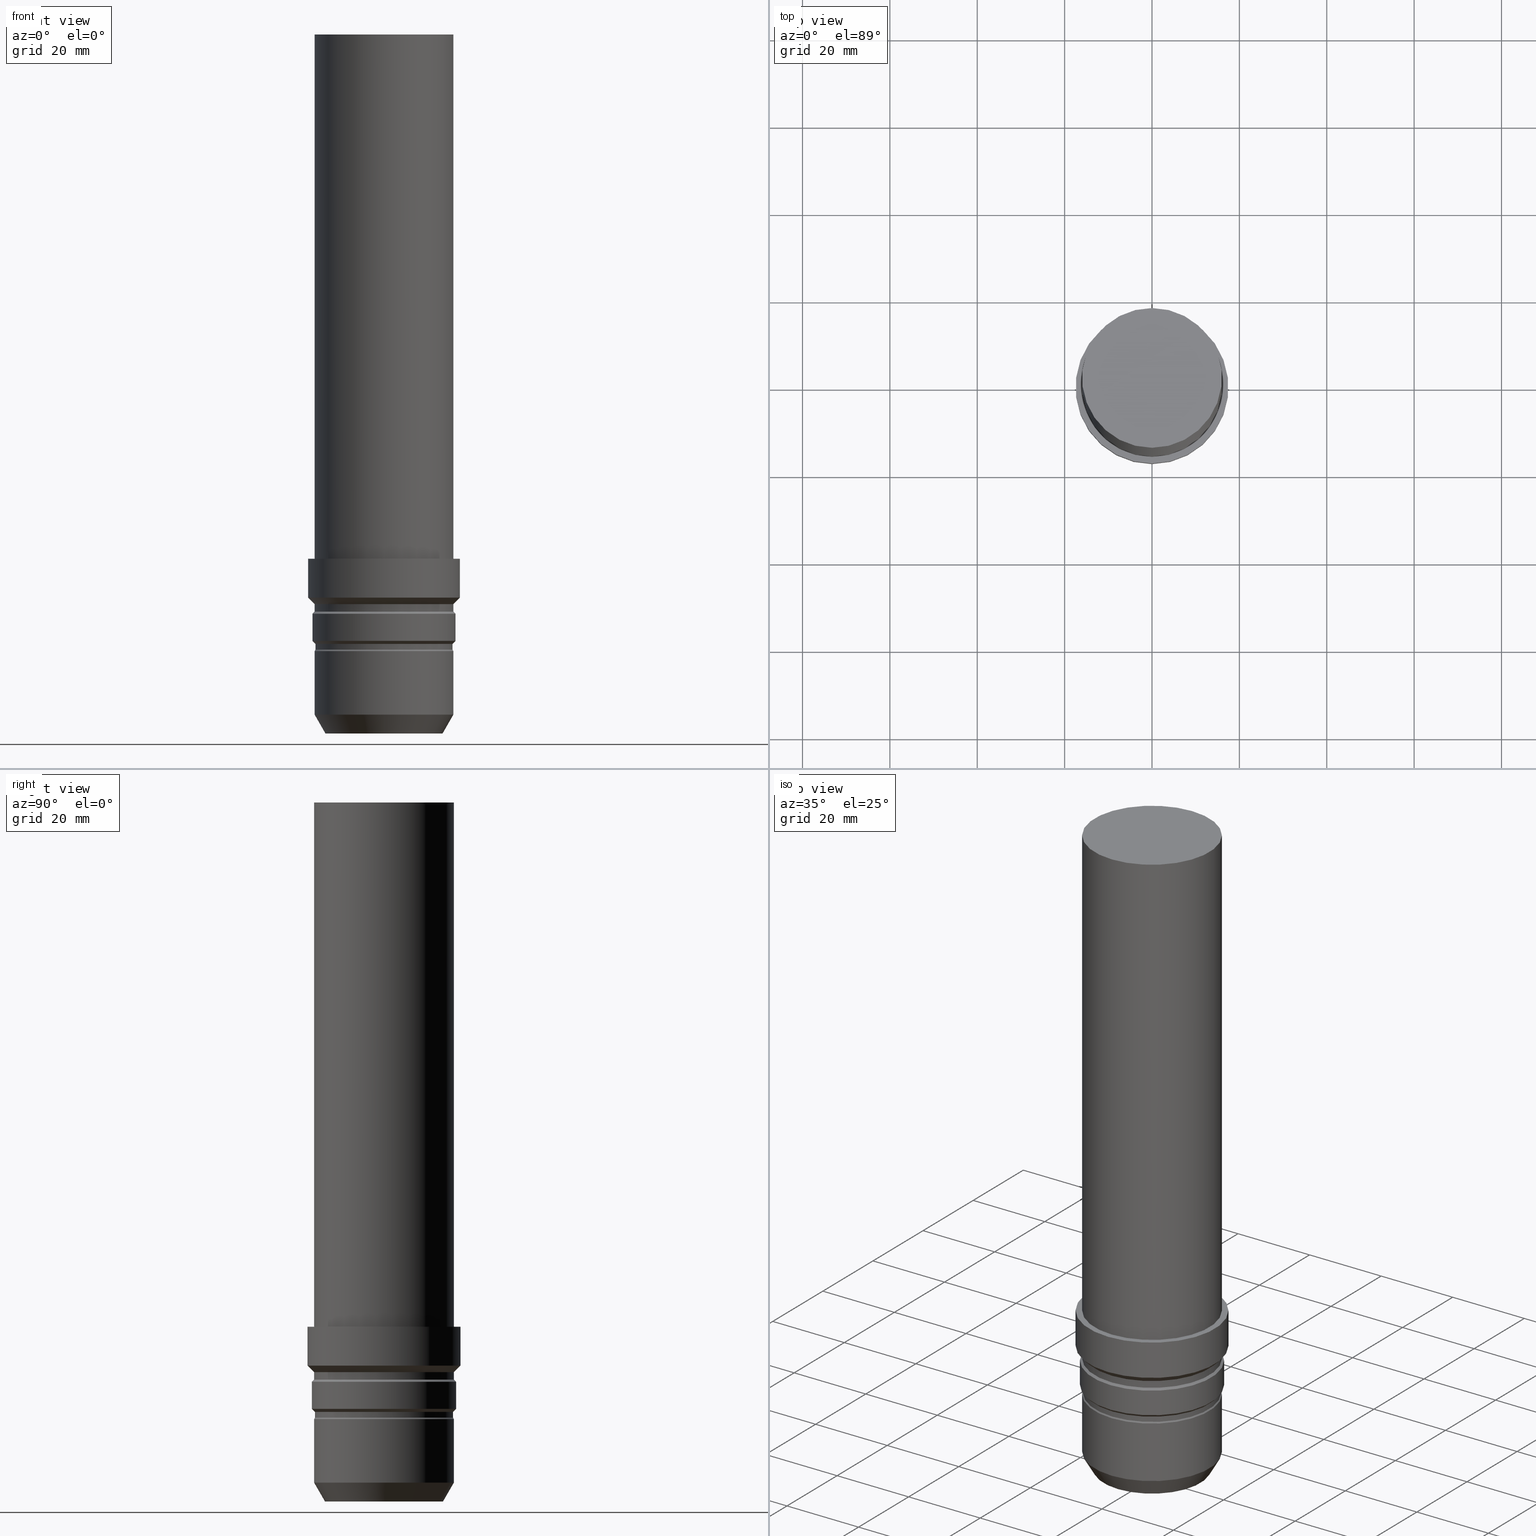
[diagram: canonical four-view strip — front | top / right | iso, engineering-drawing reading convention]
A machine part, canonical four-view strip (front | top / right | iso — engineering-drawing reading convention). The complete STEP part file that produces these views, byte-faithful:
ISO-10303-21;
HEADER;
FILE_DESCRIPTION((''),'1');
FILE_NAME('U:/Translate/00_BIG-HP\X2\FF71FF6FFF8CFF9F\X0\2013/\X2\30C030A630F330ED30FC30C930C730FC30BF\X0\/Vol9\X2\4EE5964D63B28F094E885B9A\X0\/STEP_\X2\FF82FF70FF98FF9DFF78FF9E7DE8\X0\Vol9-1\X2\4EE5964D63B28F094E885B9A\X0\/ST32-HMC12J-160.stp','2014-12-22T03:54:48',(''),(''),'Spatial Interop R21 SP3','Kubotek KeyCreator 2011 V10.0.2 (22737)',' ');
FILE_SCHEMA(('automotive_design'));
ENDSEC;
DATA;
#1=MECHANICAL_DESIGN_GEOMETRIC_PRESENTATION_REPRESENTATION(' ',(#10,#11,#12,#13,#14,#15,#16,#17,#18,#19,#20,#21,#22,#23,#24,#25,#26,#27,#28,#29,#30,#31,#32,#33,#34,#35,#36,#37),#6);
#2=PRODUCT_DEFINITION_CONTEXT('',#38,'design');
#3=APPLICATION_PROTOCOL_DEFINITION('INTERNATIONAL STANDARD','automotive_design',1994,#38);
#4=PRODUCT_CATEGORY_RELATIONSHIP('NONE','NONE',#39,#40);
#5=SHAPE_DEFINITION_REPRESENTATION(#41,#42);
#6= (GEOMETRIC_REPRESENTATION_CONTEXT(3)GLOBAL_UNCERTAINTY_ASSIGNED_CONTEXT((#45))GLOBAL_UNIT_ASSIGNED_CONTEXT((#47,#48,#49))REPRESENTATION_CONTEXT('NONE','WORKSPACE'));
#10=STYLED_ITEM('',(#51),#52);
#11=STYLED_ITEM('',(#53,#54),#55);
#12=STYLED_ITEM('',(#56,#57),#58);
#13=STYLED_ITEM('',(#59,#60),#61);
#14=STYLED_ITEM('',(#62,#63),#64);
#15=STYLED_ITEM('',(#65),#66);
#16=STYLED_ITEM('',(#67),#68);
#17=STYLED_ITEM('',(#69),#70);
#18=STYLED_ITEM('',(#71,#72),#73);
#19=STYLED_ITEM('',(#74),#75);
#20=STYLED_ITEM('',(#76,#77),#78);
#21=STYLED_ITEM('',(#79,#80),#81);
#22=STYLED_ITEM('',(#82,#83),#84);
#23=STYLED_ITEM('',(#85,#86),#87);
#24=STYLED_ITEM('',(#88),#89);
#25=STYLED_ITEM('',(#90,#91),#92);
#26=STYLED_ITEM('',(#93,#94),#95);
#27=STYLED_ITEM('',(#96,#97),#98);
#28=STYLED_ITEM('',(#99),#100);
#29=STYLED_ITEM('',(#101),#102);
#30=STYLED_ITEM('',(#103,#104),#105);
#31=STYLED_ITEM('',(#106),#107);
#32=STYLED_ITEM('',(#108),#109);
#33=STYLED_ITEM('',(#110),#111);
#34=STYLED_ITEM('',(#112),#113);
#35=STYLED_ITEM('',(#114,#115),#116);
#36=STYLED_ITEM('',(#117,#118),#119);
#37=STYLED_ITEM('',(#120),#121);
#38=APPLICATION_CONTEXT(' ');
#39=PRODUCT_CATEGORY('part','NONE');
#40=PRODUCT_RELATED_PRODUCT_CATEGORY('detail',' ',(#122));
#41=PRODUCT_DEFINITION_SHAPE('NONE','NONE',#123);
#42=ADVANCED_BREP_SHAPE_REPRESENTATION('Unnamed[1]',(#81,#124),#6);
#45=UNCERTAINTY_MEASURE_WITH_UNIT(LENGTH_MEASURE(1.0E-006),#47,'','');
#47= (CONVERSION_BASED_UNIT('MILLIMETRE',#127)LENGTH_UNIT()NAMED_UNIT(#130));
#48= (NAMED_UNIT(#132)PLANE_ANGLE_UNIT()SI_UNIT($,.RADIAN.));
#49= (NAMED_UNIT(#132)SOLID_ANGLE_UNIT()SI_UNIT($,.STERADIAN.));
#51=PRESENTATION_STYLE_ASSIGNMENT((#138));
#52=EDGE_CURVE('Unnamed[1]',#139,#139,#140,.T.);
#53=PRESENTATION_STYLE_ASSIGNMENT((#141));
#54=PRESENTATION_STYLE_ASSIGNMENT((#142));
#55=ADVANCED_FACE('Unnamed[1]',(#143,#144),#145,.T.);
#56=PRESENTATION_STYLE_ASSIGNMENT((#146));
#57=PRESENTATION_STYLE_ASSIGNMENT((#147));
#58=ADVANCED_FACE('Unnamed[1]',(#148,#149),#150,.T.);
#59=PRESENTATION_STYLE_ASSIGNMENT((#151));
#60=PRESENTATION_STYLE_ASSIGNMENT((#152));
#61=ADVANCED_FACE('Unnamed[1]',(#153,#154),#155,.T.);
#62=PRESENTATION_STYLE_ASSIGNMENT((#156));
#63=PRESENTATION_STYLE_ASSIGNMENT((#157));
#64=ADVANCED_FACE('Unnamed[1]',(#158,#159),#160,.T.);
#65=PRESENTATION_STYLE_ASSIGNMENT((#161));
#66=EDGE_CURVE('Unnamed[1]',#162,#162,#163,.T.);
#67=PRESENTATION_STYLE_ASSIGNMENT((#164));
#68=EDGE_CURVE('Unnamed[1]',#165,#165,#166,.T.);
#69=PRESENTATION_STYLE_ASSIGNMENT((#167));
#70=EDGE_CURVE('Unnamed[1]',#168,#168,#169,.T.);
#71=PRESENTATION_STYLE_ASSIGNMENT((#170));
#72=PRESENTATION_STYLE_ASSIGNMENT((#171));
#73=ADVANCED_FACE('Unnamed[1]',(#172),#173,.T.);
#74=PRESENTATION_STYLE_ASSIGNMENT((#174));
#75=EDGE_CURVE('Unnamed[1]',#175,#175,#176,.T.);
#76=PRESENTATION_STYLE_ASSIGNMENT((#177));
#77=PRESENTATION_STYLE_ASSIGNMENT((#178));
#78=ADVANCED_FACE('Unnamed[1]',(#179,#180),#181,.T.);
#79=PRESENTATION_STYLE_ASSIGNMENT((#182));
#80=PRESENTATION_STYLE_ASSIGNMENT((#183));
#81=MANIFOLD_SOLID_BREP('Unnamed[1]',#184);
#82=PRESENTATION_STYLE_ASSIGNMENT((#185));
#83=PRESENTATION_STYLE_ASSIGNMENT((#186));
#84=ADVANCED_FACE('Unnamed[1]',(#187,#188),#189,.T.);
#85=PRESENTATION_STYLE_ASSIGNMENT((#190));
#86=PRESENTATION_STYLE_ASSIGNMENT((#191));
#87=ADVANCED_FACE('Unnamed[1]',(#192,#193),#194,.T.);
#88=PRESENTATION_STYLE_ASSIGNMENT((#195));
#89=EDGE_CURVE('Unnamed[1]',#196,#196,#197,.T.);
#90=PRESENTATION_STYLE_ASSIGNMENT((#198));
#91=PRESENTATION_STYLE_ASSIGNMENT((#199));
#92=ADVANCED_FACE('Unnamed[1]',(#200,#201),#202,.T.);
#93=PRESENTATION_STYLE_ASSIGNMENT((#203));
#94=PRESENTATION_STYLE_ASSIGNMENT((#204));
#95=ADVANCED_FACE('Unnamed[1]',(#205,#206),#207,.T.);
#96=PRESENTATION_STYLE_ASSIGNMENT((#208));
#97=PRESENTATION_STYLE_ASSIGNMENT((#209));
#98=ADVANCED_FACE('Unnamed[1]',(#210,#211),#212,.T.);
#99=PRESENTATION_STYLE_ASSIGNMENT((#213));
#100=EDGE_CURVE('Unnamed[1]',#214,#214,#215,.T.);
#101=PRESENTATION_STYLE_ASSIGNMENT((#216));
#102=EDGE_CURVE('Unnamed[1]',#217,#217,#218,.T.);
#103=PRESENTATION_STYLE_ASSIGNMENT((#219));
#104=PRESENTATION_STYLE_ASSIGNMENT((#220));
#105=ADVANCED_FACE('Unnamed[1]',(#221,#222),#223,.T.);
#106=PRESENTATION_STYLE_ASSIGNMENT((#224));
#107=EDGE_CURVE('Unnamed[1]',#225,#225,#226,.T.);
#108=PRESENTATION_STYLE_ASSIGNMENT((#227));
#109=EDGE_CURVE('Unnamed[1]',#228,#228,#229,.T.);
#110=PRESENTATION_STYLE_ASSIGNMENT((#230));
#111=EDGE_CURVE('Unnamed[1]',#231,#231,#232,.T.);
#112=PRESENTATION_STYLE_ASSIGNMENT((#233));
#113=EDGE_CURVE('Unnamed[1]',#234,#234,#235,.T.);
#114=PRESENTATION_STYLE_ASSIGNMENT((#236));
#115=PRESENTATION_STYLE_ASSIGNMENT((#237));
#116=ADVANCED_FACE('Unnamed[1]',(#238),#239,.T.);
#117=PRESENTATION_STYLE_ASSIGNMENT((#240));
#118=PRESENTATION_STYLE_ASSIGNMENT((#241));
#119=ADVANCED_FACE('Unnamed[1]',(#242,#243),#244,.T.);
#120=PRESENTATION_STYLE_ASSIGNMENT((#245));
#121=EDGE_CURVE('Unnamed[1]',#246,#246,#247,.T.);
#122=PRODUCT('Unnamed[1]','Unnamed[1]','PART-Unnamed[1]-DESC',(#248));
#123=PRODUCT_DEFINITION('NONE','NONE',#249,#2);
#124=AXIS2_PLACEMENT_3D('',#250,#251,#252);
#127=LENGTH_MEASURE_WITH_UNIT(LENGTH_MEASURE(1.0),#253);
#130=DIMENSIONAL_EXPONENTS(1.0,0.0,0.0,0.0,0.0,0.0,0.0);
#132=DIMENSIONAL_EXPONENTS(0.0,0.0,0.0,0.0,0.0,0.0,0.0);
#138=CURVE_STYLE('',#254,POSITIVE_LENGTH_MEASURE(1000.0),#255);
#139=VERTEX_POINT('',#256);
#140=CIRCLE('',#257,15.8000000000001);
#141=SURFACE_STYLE_USAGE(.BOTH.,#258);
#142=CURVE_STYLE('',#259,POSITIVE_LENGTH_MEASURE(1000.0),#260);
#143=FACE_BOUND('',#261,.T.);
#144=FACE_BOUND('',#262,.T.);
#145=CYLINDRICAL_SURFACE('',#263,15.8000000000001);
#146=SURFACE_STYLE_USAGE(.BOTH.,#264);
#147=CURVE_STYLE('',#265,POSITIVE_LENGTH_MEASURE(1000.0),#266);
#148=FACE_BOUND('',#267,.T.);
#149=FACE_BOUND('',#268,.T.);
#150=CONICAL_SURFACE('',#269,16.1500000000001,0.785398163397412);
#151=SURFACE_STYLE_USAGE(.BOTH.,#270);
#152=CURVE_STYLE('',#271,POSITIVE_LENGTH_MEASURE(1000.0),#272);
#153=FACE_BOUND('',#273,.T.);
#154=FACE_BOUND('',#274,.T.);
#155=CYLINDRICAL_SURFACE('',#275,16.0000000000001);
#156=SURFACE_STYLE_USAGE(.BOTH.,#276);
#157=CURVE_STYLE('',#277,POSITIVE_LENGTH_MEASURE(1000.0),#278);
#158=FACE_BOUND('',#279,.T.);
#159=FACE_BOUND('',#280,.T.);
#160=CONICAL_SURFACE('',#281,14.75,0.523598775598304);
#161=CURVE_STYLE('',#282,POSITIVE_LENGTH_MEASURE(1000.0),#283);
#162=VERTEX_POINT('',#284);
#163=CIRCLE('',#285,16.0);
#164=CURVE_STYLE('',#286,POSITIVE_LENGTH_MEASURE(1000.0),#287);
#165=VERTEX_POINT('',#288);
#166=CIRCLE('',#289,16.0);
#167=CURVE_STYLE('',#290,POSITIVE_LENGTH_MEASURE(1000.0),#291);
#168=VERTEX_POINT('',#292);
#169=CIRCLE('',#293,17.5000000000002);
#170=SURFACE_STYLE_USAGE(.BOTH.,#294);
#171=CURVE_STYLE('',#295,POSITIVE_LENGTH_MEASURE(1000.0),#296);
#172=FACE_OUTER_BOUND('',#297,.T.);
#173=PLANE('',#298);
#174=CURVE_STYLE('',#299,POSITIVE_LENGTH_MEASURE(1000.0),#300);
#175=VERTEX_POINT('',#301);
#176=CIRCLE('',#302,16.0);
#177=SURFACE_STYLE_USAGE(.BOTH.,#303);
#178=CURVE_STYLE('',#304,POSITIVE_LENGTH_MEASURE(1000.0),#305);
#179=FACE_BOUND('',#306,.T.);
#180=FACE_BOUND('',#307,.T.);
#181=CONICAL_SURFACE('',#308,16.7500000000002,0.785398163397434);
#182=SURFACE_STYLE_USAGE(.BOTH.,#309);
#183=CURVE_STYLE('',#310,POSITIVE_LENGTH_MEASURE(1000.0),#311);
#184=CLOSED_SHELL('',(#73,#61,#84,#92,#78,#98,#119,#105,#58,#55,#87,#95,#64,#116));
#185=SURFACE_STYLE_USAGE(.BOTH.,#312);
#186=CURVE_STYLE('',#313,POSITIVE_LENGTH_MEASURE(1000.0),#314);
#187=FACE_OUTER_BOUND('',#315,.T.);
#188=FACE_BOUND('',#316,.T.);
#189=PLANE('',#317);
#190=SURFACE_STYLE_USAGE(.BOTH.,#318);
#191=CURVE_STYLE('',#319,POSITIVE_LENGTH_MEASURE(1000.0),#320);
#192=FACE_BOUND('',#321,.T.);
#193=FACE_BOUND('',#322,.T.);
#194=CONICAL_SURFACE('',#323,15.9,0.523598775598126);
#195=CURVE_STYLE('',#324,POSITIVE_LENGTH_MEASURE(1000.0),#325);
#196=VERTEX_POINT('',#326);
#197=CIRCLE('',#327,16.5000000000002);
#198=SURFACE_STYLE_USAGE(.BOTH.,#328);
#199=CURVE_STYLE('',#329,POSITIVE_LENGTH_MEASURE(1000.0),#330);
#200=FACE_BOUND('',#331,.T.);
#201=FACE_BOUND('',#332,.T.);
#202=CYLINDRICAL_SURFACE('',#333,17.5000000000002);
#203=SURFACE_STYLE_USAGE(.BOTH.,#334);
#204=CURVE_STYLE('',#335,POSITIVE_LENGTH_MEASURE(1000.0),#336);
#205=FACE_BOUND('',#337,.T.);
#206=FACE_BOUND('',#338,.T.);
#207=CYLINDRICAL_SURFACE('',#339,16.0);
#208=SURFACE_STYLE_USAGE(.BOTH.,#340);
#209=CURVE_STYLE('',#341,POSITIVE_LENGTH_MEASURE(1000.0),#342);
#210=FACE_BOUND('',#343,.T.);
#211=FACE_BOUND('',#344,.T.);
#212=CYLINDRICAL_SURFACE('',#345,16.0000000000002);
#213=CURVE_STYLE('',#346,POSITIVE_LENGTH_MEASURE(1000.0),#347);
#214=VERTEX_POINT('',#348);
#215=CIRCLE('',#349,16.0000000000002);
#216=CURVE_STYLE('',#350,POSITIVE_LENGTH_MEASURE(1000.0),#351);
#217=VERTEX_POINT('',#352);
#218=CIRCLE('',#353,16.5000000000001);
#219=SURFACE_STYLE_USAGE(.BOTH.,#354);
#220=CURVE_STYLE('',#355,POSITIVE_LENGTH_MEASURE(1000.0),#356);
#221=FACE_BOUND('',#357,.T.);
#222=FACE_BOUND('',#358,.T.);
#223=CYLINDRICAL_SURFACE('',#359,16.5000000000001);
#224=CURVE_STYLE('',#360,POSITIVE_LENGTH_MEASURE(1000.0),#361);
#225=VERTEX_POINT('',#362);
#226=CIRCLE('',#363,15.8000000000001);
#227=CURVE_STYLE('',#364,POSITIVE_LENGTH_MEASURE(1000.0),#365);
#228=VERTEX_POINT('',#366);
#229=CIRCLE('',#367,16.0000000000002);
#230=CURVE_STYLE('',#368,POSITIVE_LENGTH_MEASURE(1000.0),#369);
#231=VERTEX_POINT('',#370);
#232=CIRCLE('',#371,17.5000000000002);
#233=CURVE_STYLE('',#372,POSITIVE_LENGTH_MEASURE(1000.0),#373);
#234=VERTEX_POINT('',#374);
#235=CIRCLE('',#375,13.5000000000001);
#236=SURFACE_STYLE_USAGE(.BOTH.,#376);
#237=CURVE_STYLE('',#377,POSITIVE_LENGTH_MEASURE(1000.0),#378);
#238=FACE_OUTER_BOUND('',#379,.T.);
#239=PLANE('',#380);
#240=SURFACE_STYLE_USAGE(.BOTH.,#381);
#241=CURVE_STYLE('',#382,POSITIVE_LENGTH_MEASURE(1000.0),#383);
#242=FACE_BOUND('',#384,.T.);
#243=FACE_BOUND('',#385,.T.);
#244=CONICAL_SURFACE('',#386,16.2500000000002,0.785398163397583);
#245=CURVE_STYLE('',#387,POSITIVE_LENGTH_MEASURE(1000.0),#388);
#246=VERTEX_POINT('',#389);
#247=CIRCLE('',#390,16.0000000000002);
#248=PRODUCT_CONTEXT('',#38,'mechanical');
#249=PRODUCT_DEFINITION_FORMATION_WITH_SPECIFIED_SOURCE(' ','NONE',#122,.NOT_KNOWN.);
#250=CARTESIAN_POINT('',(0.0,0.0,0.0));
#251=DIRECTION('',(0.0,0.0,1.0));
#252=DIRECTION('',(1.0,0.0,0.0));
#253= (NAMED_UNIT(#130)LENGTH_UNIT()SI_UNIT(.MILLI.,.METRE.));
#254=DRAUGHTING_PRE_DEFINED_CURVE_FONT('continuous');
#255=COLOUR_RGB('',0.0,1.0,0.0);
#256=CARTESIAN_POINT('',(-1.25526296912605E-015,15.8000000000002,20.5000000000003));
#257=AXIS2_PLACEMENT_3D('',#392,#393,#394);
#258=SURFACE_SIDE_STYLE('',(#395));
#259=DRAUGHTING_PRE_DEFINED_CURVE_FONT('continuous');
#260=COLOUR_RGB('',0.0,1.0,0.0);
#261=EDGE_LOOP('',(#396));
#262=EDGE_LOOP('',(#397));
#263=AXIS2_PLACEMENT_3D('',#398,#399,#400);
#264=SURFACE_SIDE_STYLE('',(#401));
#265=DRAUGHTING_PRE_DEFINED_CURVE_FONT('continuous');
#266=COLOUR_RGB('',0.0,1.0,0.0);
#267=EDGE_LOOP('',(#402));
#268=EDGE_LOOP('',(#403));
#269=AXIS2_PLACEMENT_3D('',#404,#405,#406);
#270=SURFACE_SIDE_STYLE('',(#407));
#271=DRAUGHTING_PRE_DEFINED_CURVE_FONT('continuous');
#272=COLOUR_RGB('',0.0,1.0,0.0);
#273=EDGE_LOOP('',(#408));
#274=EDGE_LOOP('',(#409));
#275=AXIS2_PLACEMENT_3D('',#410,#411,#412);
#276=SURFACE_SIDE_STYLE('',(#413));
#277=DRAUGHTING_PRE_DEFINED_CURVE_FONT('continuous');
#278=COLOUR_RGB('',0.0,1.0,0.0);
#279=EDGE_LOOP('',(#414));
#280=EDGE_LOOP('',(#415));
#281=AXIS2_PLACEMENT_3D('',#416,#417,#418);
#282=DRAUGHTING_PRE_DEFINED_CURVE_FONT('continuous');
#283=COLOUR_RGB('',0.0,1.0,0.0);
#284=CARTESIAN_POINT('',(-9.7971743931788E-015,16.0000000000002,160.0));
#285=AXIS2_PLACEMENT_3D('',#419,#420,#421);
#286=DRAUGHTING_PRE_DEFINED_CURVE_FONT('continuous');
#287=COLOUR_RGB('',0.0,1.0,0.0);
#288=CARTESIAN_POINT('',(-1.15444942240699E-015,16.0,18.8535898384866));
#289=AXIS2_PLACEMENT_3D('',#422,#423,#424);
#290=DRAUGHTING_PRE_DEFINED_CURVE_FONT('continuous');
#291=COLOUR_RGB('',0.0,1.0,0.0);
#292=CARTESIAN_POINT('',(-1.90432577267407E-015,17.5000000000002,31.099999999999));
#293=AXIS2_PLACEMENT_3D('',#425,#426,#427);
#294=SURFACE_SIDE_STYLE('',(#428));
#295=DRAUGHTING_PRE_DEFINED_CURVE_FONT('continuous');
#296=COLOUR_RGB('',0.0,1.0,0.0);
#297=EDGE_LOOP('',(#429));
#298=AXIS2_PLACEMENT_3D('',#430,#431,#432);
#299=DRAUGHTING_PRE_DEFINED_CURVE_FONT('continuous');
#300=COLOUR_RGB('',0.0,1.0,0.0);
#301=CARTESIAN_POINT('',(-2.65143809681212E-016,16.0,4.33012701892196));
#302=AXIS2_PLACEMENT_3D('',#433,#434,#435);
#303=SURFACE_SIDE_STYLE('',(#436));
#304=DRAUGHTING_PRE_DEFINED_CURVE_FONT('continuous');
#305=COLOUR_RGB('',0.0,1.0,0.0);
#306=EDGE_LOOP('',(#437));
#307=EDGE_LOOP('',(#438));
#308=AXIS2_PLACEMENT_3D('',#439,#440,#441);
#309=SURFACE_SIDE_STYLE('',(#442));
#310=DRAUGHTING_PRE_DEFINED_CURVE_FONT('continuous');
#311=COLOUR_RGB('',0.0,1.0,0.0);
#312=SURFACE_SIDE_STYLE('',(#443));
#313=DRAUGHTING_PRE_DEFINED_CURVE_FONT('continuous');
#314=COLOUR_RGB('',0.0,1.0,0.0);
#315=EDGE_LOOP('',(#444));
#316=EDGE_LOOP('',(#445));
#317=AXIS2_PLACEMENT_3D('',#446,#447,#448);
#318=SURFACE_SIDE_STYLE('',(#449));
#319=DRAUGHTING_PRE_DEFINED_CURVE_FONT('continuous');
#320=COLOUR_RGB('',0.0,1.0,0.0);
#321=EDGE_LOOP('',(#450));
#322=EDGE_LOOP('',(#451));
#323=AXIS2_PLACEMENT_3D('',#452,#453,#454);
#324=DRAUGHTING_PRE_DEFINED_CURVE_FONT('continuous');
#325=COLOUR_RGB('',0.0,1.0,0.0);
#326=CARTESIAN_POINT('',(-1.67776611483181E-015,16.5000000000002,27.399999999999));
#327=AXIS2_PLACEMENT_3D('',#455,#456,#457);
#328=SURFACE_SIDE_STYLE('',(#458));
#329=DRAUGHTING_PRE_DEFINED_CURVE_FONT('continuous');
#330=COLOUR_RGB('',0.0,1.0,0.0);
#331=EDGE_LOOP('',(#459));
#332=EDGE_LOOP('',(#460));
#333=AXIS2_PLACEMENT_3D('',#461,#462,#463);
#334=SURFACE_SIDE_STYLE('',(#464));
#335=DRAUGHTING_PRE_DEFINED_CURVE_FONT('continuous');
#336=COLOUR_RGB('',0.0,1.0,0.0);
#337=EDGE_LOOP('',(#465));
#338=EDGE_LOOP('',(#466));
#339=AXIS2_PLACEMENT_3D('',#467,#468,#469);
#340=SURFACE_SIDE_STYLE('',(#470));
#341=DRAUGHTING_PRE_DEFINED_CURVE_FONT('continuous');
#342=COLOUR_RGB('',0.0,1.0,0.0);
#343=EDGE_LOOP('',(#471));
#344=EDGE_LOOP('',(#472));
#345=AXIS2_PLACEMENT_3D('',#473,#474,#475);
#346=DRAUGHTING_PRE_DEFINED_CURVE_FONT('continuous');
#347=COLOUR_RGB('',0.0,1.0,0.0);
#348=CARTESIAN_POINT('',(-1.70838228481049E-015,16.0000000000002,27.8999999999988));
#349=AXIS2_PLACEMENT_3D('',#476,#477,#478);
#350=DRAUGHTING_PRE_DEFINED_CURVE_FONT('continuous');
#351=COLOUR_RGB('',0.0,1.0,0.0);
#352=CARTESIAN_POINT('',(-1.29812560709621E-015,16.5000000000001,21.2000000000002));
#353=AXIS2_PLACEMENT_3D('',#479,#480,#481);
#354=SURFACE_SIDE_STYLE('',(#482));
#355=DRAUGHTING_PRE_DEFINED_CURVE_FONT('continuous');
#356=COLOUR_RGB('',0.0,1.0,0.0);
#357=EDGE_LOOP('',(#483));
#358=EDGE_LOOP('',(#484));
#359=AXIS2_PLACEMENT_3D('',#485,#486,#487);
#360=DRAUGHTING_PRE_DEFINED_CURVE_FONT('continuous');
#361=COLOUR_RGB('',0.0,1.0,0.0);
#362=CARTESIAN_POINT('',(-1.17566092718147E-015,15.8000000000002,19.2000000000002));
#363=AXIS2_PLACEMENT_3D('',#488,#489,#490);
#364=DRAUGHTING_PRE_DEFINED_CURVE_FONT('continuous');
#365=COLOUR_RGB('',0.0,1.0,0.0);
#366=CARTESIAN_POINT('',(-2.4492935982947E-015,16.0000000000002,39.9999999999998));
#367=AXIS2_PLACEMENT_3D('',#491,#492,#493);
#368=DRAUGHTING_PRE_DEFINED_CURVE_FONT('continuous');
#369=COLOUR_RGB('',0.0,1.0,0.0);
#370=CARTESIAN_POINT('',(-2.44929359829466E-015,17.5000000000002,39.9999999999992));
#371=AXIS2_PLACEMENT_3D('',#494,#495,#496);
#372=DRAUGHTING_PRE_DEFINED_CURVE_FONT('continuous');
#373=COLOUR_RGB('',0.0,1.0,0.0);
#374=CARTESIAN_POINT('',(1.57772181044202E-030,13.5000000000001,-2.8421709430404E-014));
#375=AXIS2_PLACEMENT_3D('',#497,#498,#499);
#376=SURFACE_SIDE_STYLE('',(#500));
#377=DRAUGHTING_PRE_DEFINED_CURVE_FONT('continuous');
#378=COLOUR_RGB('',0.0,1.0,0.0);
#379=EDGE_LOOP('',(#501));
#380=AXIS2_PLACEMENT_3D('',#502,#503,#504);
#381=SURFACE_SIDE_STYLE('',(#505));
#382=DRAUGHTING_PRE_DEFINED_CURVE_FONT('continuous');
#383=COLOUR_RGB('',0.0,1.0,0.0);
#384=EDGE_LOOP('',(#506));
#385=EDGE_LOOP('',(#507));
#386=AXIS2_PLACEMENT_3D('',#508,#509,#510);
#387=DRAUGHTING_PRE_DEFINED_CURVE_FONT('continuous');
#388=COLOUR_RGB('',0.0,1.0,0.0);
#389=CARTESIAN_POINT('',(-1.81247726273802E-015,16.0000000000002,29.5999999999989));
#390=AXIS2_PLACEMENT_3D('',#511,#512,#513);
#392=CARTESIAN_POINT('',(-1.25526296912605E-015,2.80623135679213E-014,20.5000000000003));
#393=DIRECTION('',(6.12323399573677E-017,-1.3688933447767E-015,-1.0));
#394=DIRECTION('',(7.89933899219782E-032,1.0,-1.3688933447767E-015));
#395=SURFACE_STYLE_FILL_AREA(#514);
#396=ORIENTED_EDGE('',*,*,#107,.F.);
#397=ORIENTED_EDGE('',*,*,#52,.T.);
#398=CARTESIAN_POINT('',(-1.21546194815377E-015,2.71725328938165E-014,19.8500000000003));
#399=DIRECTION('',(6.12323399573677E-017,-1.3688933447767E-015,-1.0));
#400=DIRECTION('',(7.89933899220009E-032,1.0,-1.3688933447767E-015));
#401=SURFACE_STYLE_FILL_AREA(#515);
#402=ORIENTED_EDGE('',*,*,#52,.F.);
#403=ORIENTED_EDGE('',*,*,#102,.T.);
#404=CARTESIAN_POINT('',(-1.27669428811113E-015,2.85414262385931E-014,20.8500000000003));
#405=DIRECTION('',(-6.12323399573676E-017,1.36889334477662E-015,1.0));
#406=DIRECTION('',(7.89933899219662E-032,1.0,-1.36889334477662E-015));
#407=SURFACE_STYLE_FILL_AREA(#516);
#408=ORIENTED_EDGE('',*,*,#109,.F.);
#409=ORIENTED_EDGE('',*,*,#66,.T.);
#410=CARTESIAN_POINT('',(-6.12323399573675E-015,1.36889334477662E-013,99.9999999999997));
#411=DIRECTION('',(6.12323399573676E-017,-1.3688933447766E-015,-1.0));
#412=DIRECTION('',(7.89933899219683E-032,1.0,-1.3688933447766E-015));
#413=SURFACE_STYLE_FILL_AREA(#517);
#414=ORIENTED_EDGE('',*,*,#113,.F.);
#415=ORIENTED_EDGE('',*,*,#75,.T.);
#416=CARTESIAN_POINT('',(-1.32571904840606E-016,2.96374102911992E-015,2.16506350946099));
#417=DIRECTION('',(-6.12323399573676E-017,1.36889334477654E-015,1.0));
#418=DIRECTION('',(7.89933899219579E-032,1.0,-1.36889334477654E-015));
#419=CARTESIAN_POINT('',(-9.7971743931788E-015,2.1902293516426E-013,160.0));
#420=DIRECTION('',(6.12323399573677E-017,-1.36889334477661E-015,-1.0));
#421=DIRECTION('',(7.89933899219688E-032,1.0,-1.36889334477661E-015));
#422=CARTESIAN_POINT('',(-1.15444942240699E-015,2.58085536550527E-014,18.8535898384867));
#423=DIRECTION('',(6.12323399573677E-017,-1.36889334477661E-015,-1.0));
#424=DIRECTION('',(7.89933899219689E-032,1.0,-1.36889334477661E-015));
#425=CARTESIAN_POINT('',(-1.90432577267407E-015,4.25725830225517E-014,31.099999999999));
#426=DIRECTION('',(6.12323399573677E-017,-1.36889334477662E-015,-1.0));
#427=DIRECTION('',(7.89933899219705E-032,1.0,-1.36889334477662E-015));
#428=SURFACE_STYLE_FILL_AREA(#518);
#429=ORIENTED_EDGE('',*,*,#66,.F.);
#430=CARTESIAN_POINT('',(-9.7971743931788E-015,8.0000000000002,160.0));
#431=DIRECTION('',(-6.12323399573677E-017,1.81018652890104E-015,1.0));
#432=DIRECTION('',(-1.06014804193147E-031,-1.0,1.81018652890104E-015));
#433=CARTESIAN_POINT('',(-2.65143809681214E-016,5.92748205823976E-015,4.33012701892198));
#434=DIRECTION('',(6.12323399573676E-017,-1.36889334477661E-015,-1.0));
#435=DIRECTION('',(7.89933899219688E-032,1.0,-1.36889334477661E-015));
#436=SURFACE_STYLE_FILL_AREA(#519);
#437=ORIENTED_EDGE('',*,*,#121,.F.);
#438=ORIENTED_EDGE('',*,*,#70,.T.);
#439=CARTESIAN_POINT('',(-1.85840151770604E-015,4.15459130139693E-014,30.349999999999));
#440=DIRECTION('',(-6.12323399573676E-017,1.36889334477671E-015,1.0));
#441=DIRECTION('',(7.89933899219799E-032,1.0,-1.36889334477671E-015));
#442=SURFACE_STYLE_FILL_AREA(#520);
#443=SURFACE_STYLE_FILL_AREA(#521);
#444=ORIENTED_EDGE('',*,*,#111,.F.);
#445=ORIENTED_EDGE('',*,*,#109,.T.);
#446=CARTESIAN_POINT('',(-2.44929359829468E-015,16.7500000000002,39.9999999999995));
#447=DIRECTION('',(-6.12323399573677E-017,4.26203176776153E-013,1.0));
#448=DIRECTION('',(-2.60925906585367E-029,-1.0,4.26203176776153E-013));
#449=SURFACE_STYLE_FILL_AREA(#522);
#450=ORIENTED_EDGE('',*,*,#68,.F.);
#451=ORIENTED_EDGE('',*,*,#107,.T.);
#452=CARTESIAN_POINT('',(-1.16505517479423E-015,2.60456529373822E-014,19.0267949192435));
#453=DIRECTION('',(6.12323399573677E-017,-1.36889334477666E-015,-1.0));
#454=DIRECTION('',(7.89933899219848E-032,1.0,-1.36889334477666E-015));
#455=CARTESIAN_POINT('',(-1.67776611483181E-015,3.75076776468782E-014,27.399999999999));
#456=DIRECTION('',(6.12323399573677E-017,-1.36889334477654E-015,-1.0));
#457=DIRECTION('',(7.89933899219759E-032,1.0,-1.36889334477654E-015));
#458=SURFACE_STYLE_FILL_AREA(#523);
#459=ORIENTED_EDGE('',*,*,#70,.F.);
#460=ORIENTED_EDGE('',*,*,#111,.T.);
#461=CARTESIAN_POINT('',(-2.17680968548437E-015,4.86641584068079E-014,35.5499999999991));
#462=DIRECTION('',(6.12323399573677E-017,-1.36889334477662E-015,-1.0));
#463=DIRECTION('',(7.89933899219705E-032,1.0,-1.36889334477662E-015));
#464=SURFACE_STYLE_FILL_AREA(#524);
#465=ORIENTED_EDGE('',*,*,#75,.F.);
#466=ORIENTED_EDGE('',*,*,#68,.T.);
#467=CARTESIAN_POINT('',(-7.09796616044102E-016,1.58680178566463E-014,11.5918584287043));
#468=DIRECTION('',(6.12323399573676E-017,-1.36889334477661E-015,-1.0));
#469=DIRECTION('',(7.89933899219689E-032,1.0,-1.36889334477661E-015));
#470=SURFACE_STYLE_FILL_AREA(#525);
#471=ORIENTED_EDGE('',*,*,#100,.F.);
#472=ORIENTED_EDGE('',*,*,#121,.T.);
#473=CARTESIAN_POINT('',(-1.76042977377425E-015,3.93556836623266E-014,28.7499999999989));
#474=DIRECTION('',(6.12323399573677E-017,-1.36889334477659E-015,-1.0));
#475=DIRECTION('',(7.89933899219678E-032,1.0,-1.36889334477659E-015));
#476=CARTESIAN_POINT('',(-1.70838228481049E-015,3.81921243192664E-014,27.8999999999989));
#477=DIRECTION('',(6.12323399573677E-017,-1.36889334477659E-015,-1.0));
#478=DIRECTION('',(7.89933899219678E-032,1.0,-1.36889334477659E-015));
#479=CARTESIAN_POINT('',(-1.29812560709621E-015,2.90205389092649E-014,21.2000000000003));
#480=DIRECTION('',(6.12323399573677E-017,-1.36889334477655E-015,-1.0));
#481=DIRECTION('',(7.89933899219547E-032,1.0,-1.36889334477655E-015));
#482=SURFACE_STYLE_FILL_AREA(#526);
#483=ORIENTED_EDGE('',*,*,#102,.F.);
#484=ORIENTED_EDGE('',*,*,#89,.T.);
#485=CARTESIAN_POINT('',(-1.48794586096401E-015,3.32641082780716E-014,24.2999999999996));
#486=DIRECTION('',(6.12323399573677E-017,-1.36889334477654E-015,-1.0));
#487=DIRECTION('',(7.89933899219762E-032,1.0,-1.36889334477654E-015));
#488=CARTESIAN_POINT('',(-1.17566092718148E-015,2.62827522197116E-014,19.2000000000003));
#489=DIRECTION('',(6.12323399573677E-017,-1.3688933447767E-015,-1.0));
#490=DIRECTION('',(7.89933899220009E-032,1.0,-1.3688933447767E-015));
#491=CARTESIAN_POINT('',(-2.4492935982947E-015,5.47557337910649E-014,39.9999999999999));
#492=DIRECTION('',(6.12323399573676E-017,-1.36889334477659E-015,-1.0));
#493=DIRECTION('',(7.89933899219678E-032,1.0,-1.36889334477659E-015));
#494=CARTESIAN_POINT('',(-2.44929359829466E-015,5.47557337910641E-014,39.9999999999992));
#495=DIRECTION('',(6.12323399573677E-017,-1.36889334477663E-015,-1.0));
#496=DIRECTION('',(7.89933899219705E-032,1.0,-1.36889334477663E-015));
#497=CARTESIAN_POINT('',(0.0,0.0,0.0));
#498=DIRECTION('',(6.12323399573677E-017,-1.3688933447767E-015,-1.0));
#499=DIRECTION('',(7.89933899219716E-032,1.0,-1.3688933447767E-015));
#500=SURFACE_STYLE_FILL_AREA(#527);
#501=ORIENTED_EDGE('',*,*,#113,.T.);
#502=CARTESIAN_POINT('',(4.25984888819346E-029,6.75000000000003,-6.82121026329696E-013));
#503=DIRECTION('',(6.12323399573677E-017,9.90721197339134E-014,-1.0));
#504=DIRECTION('',(-6.07124486857479E-030,1.0,9.90721197339134E-014));
#505=SURFACE_STYLE_FILL_AREA(#528);
#506=ORIENTED_EDGE('',*,*,#89,.F.);
#507=ORIENTED_EDGE('',*,*,#100,.T.);
#508=CARTESIAN_POINT('',(-1.69307419982115E-015,3.78499009830723E-014,27.6499999999989));
#509=DIRECTION('',(6.12323399573677E-017,-1.36889334477656E-015,-1.0));
#510=DIRECTION('',(7.89933899219498E-032,1.0,-1.36889334477656E-015));
#511=CARTESIAN_POINT('',(-1.81247726273802E-015,4.05192430053868E-014,29.599999999999));
#512=DIRECTION('',(6.12323399573677E-017,-1.36889334477659E-015,-1.0));
#513=DIRECTION('',(7.89933899219678E-032,1.0,-1.36889334477659E-015));
#514=FILL_AREA_STYLE('',(#529));
#515=FILL_AREA_STYLE('',(#530));
#516=FILL_AREA_STYLE('',(#531));
#517=FILL_AREA_STYLE('',(#532));
#518=FILL_AREA_STYLE('',(#533));
#519=FILL_AREA_STYLE('',(#534));
#520=FILL_AREA_STYLE('',(#535));
#521=FILL_AREA_STYLE('',(#536));
#522=FILL_AREA_STYLE('',(#537));
#523=FILL_AREA_STYLE('',(#538));
#524=FILL_AREA_STYLE('',(#539));
#525=FILL_AREA_STYLE('',(#540));
#526=FILL_AREA_STYLE('',(#541));
#527=FILL_AREA_STYLE('',(#542));
#528=FILL_AREA_STYLE('',(#543));
#529=FILL_AREA_STYLE_COLOUR('',#544);
#530=FILL_AREA_STYLE_COLOUR('',#545);
#531=FILL_AREA_STYLE_COLOUR('',#546);
#532=FILL_AREA_STYLE_COLOUR('',#547);
#533=FILL_AREA_STYLE_COLOUR('',#548);
#534=FILL_AREA_STYLE_COLOUR('',#549);
#535=FILL_AREA_STYLE_COLOUR('',#550);
#536=FILL_AREA_STYLE_COLOUR('',#551);
#537=FILL_AREA_STYLE_COLOUR('',#552);
#538=FILL_AREA_STYLE_COLOUR('',#553);
#539=FILL_AREA_STYLE_COLOUR('',#554);
#540=FILL_AREA_STYLE_COLOUR('',#555);
#541=FILL_AREA_STYLE_COLOUR('',#556);
#542=FILL_AREA_STYLE_COLOUR('',#557);
#543=FILL_AREA_STYLE_COLOUR('',#558);
#544=COLOUR_RGB('',0.0,1.0,0.0);
#545=COLOUR_RGB('',0.0,1.0,0.0);
#546=COLOUR_RGB('',0.0,1.0,0.0);
#547=COLOUR_RGB('',0.0,1.0,0.0);
#548=COLOUR_RGB('',0.0,1.0,0.0);
#549=COLOUR_RGB('',0.0,1.0,0.0);
#550=COLOUR_RGB('',0.0,1.0,0.0);
#551=COLOUR_RGB('',0.0,1.0,0.0);
#552=COLOUR_RGB('',0.0,1.0,0.0);
#553=COLOUR_RGB('',0.0,1.0,0.0);
#554=COLOUR_RGB('',0.0,1.0,0.0);
#555=COLOUR_RGB('',0.0,1.0,0.0);
#556=COLOUR_RGB('',0.0,1.0,0.0);
#557=COLOUR_RGB('',0.0,1.0,0.0);
#558=COLOUR_RGB('',0.0,1.0,0.0);
ENDSEC;
END-ISO-10303-21;
